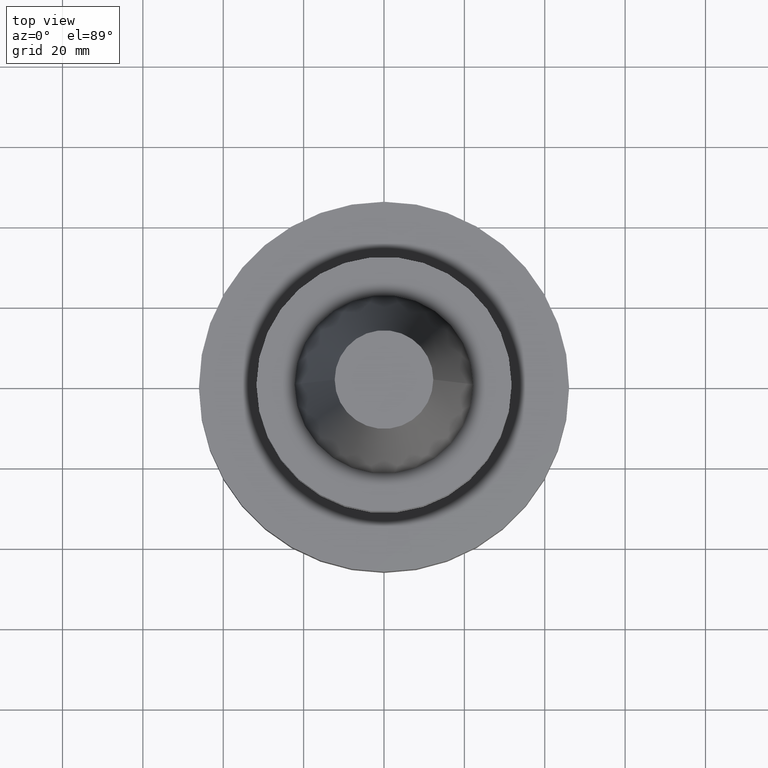
[diagram: clean part render]
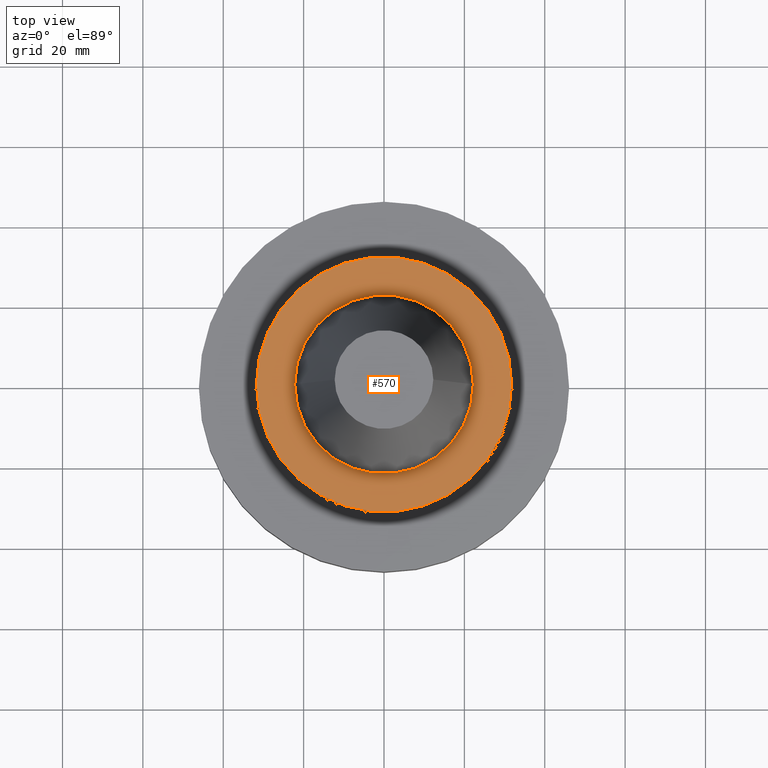
[diagram: same view with one face highlighted and labeled with its STEP entity id]
A machine part, top view. The second image highlights one B-rep face of the part: STEP entity #570.
In plain terms, the highlighted planar face has unit normal (0, 0, -1).
Its self-contained STEP definition (entity closure, byte-faithful):
#34 = CARTESIAN_POINT ( 'NONE',  ( 0.000000000000000000, 31.75000000000000000, -0.9999999999999995559 ) ) ;
#36 = EDGE_CURVE ( 'NONE', #117, #510, #785, .T. ) ;
#47 = CARTESIAN_POINT ( 'NONE',  ( 0.000000000000000000, 0.000000000000000000, -1.000000000000000888 ) ) ;
#54 = EDGE_CURVE ( 'NONE', #985, #870, #834, .T. ) ;
#117 = VERTEX_POINT ( 'NONE', #926 ) ;
#157 = CARTESIAN_POINT ( 'NONE',  ( 0.000000000000000000, 0.000000000000000000, -1.000000000000000888 ) ) ;
#169 = CARTESIAN_POINT ( 'NONE',  ( 0.000000000000000000, 0.000000000000000000, -1.000000000000000888 ) ) ;
#244 = DIRECTION ( 'NONE',  ( 1.000000000000000000, 0.000000000000000000, 0.000000000000000000 ) ) ;
#292 = DIRECTION ( 'NONE',  ( -1.000000000000000000, 0.000000000000000000, -0.000000000000000000 ) ) ;
#345 = DIRECTION ( 'NONE',  ( 1.000000000000000000, 0.000000000000000000, 0.000000000000000000 ) ) ;
#358 = AXIS2_PLACEMENT_3D ( 'NONE', #157, #748, #244 ) ;
#387 = PLANE ( 'NONE',  #687 ) ;
#393 = DIRECTION ( 'NONE',  ( 0.000000000000000000, 0.000000000000000000, -1.000000000000000000 ) ) ;
#402 = CIRCLE ( 'NONE', #540, 22.22500000000000142 ) ;
#403 = CARTESIAN_POINT ( 'NONE',  ( -31.75000000000000000, 3.888253587292846476E-15, -1.000000000000000888 ) ) ;
#492 = ORIENTED_EDGE ( 'NONE', *, *, #661, .T. ) ;
#507 = EDGE_CURVE ( 'NONE', #510, #117, #402, .T. ) ;
#510 = VERTEX_POINT ( 'NONE', #518 ) ;
#518 = CARTESIAN_POINT ( 'NONE',  ( -22.22500000000000142, 2.721777511104992849E-15, -1.000000000000000888 ) ) ;
#539 = DIRECTION ( 'NONE',  ( -0.000000000000000000, -0.000000000000000000, 1.000000000000000000 ) ) ;
#540 = AXIS2_PLACEMENT_3D ( 'NONE', #1021, #619, #345 ) ;
#541 = CIRCLE ( 'NONE', #754, 31.75000000000000000 ) ;
#543 = DIRECTION ( 'NONE',  ( 1.000000000000000000, 0.000000000000000000, 0.000000000000000000 ) ) ;
#570 = ADVANCED_FACE ( 'NONE', ( #721, #799 ), #387, .F. ) ;
#595 = EDGE_LOOP ( 'NONE', ( #791, #950 ) ) ;
#619 = DIRECTION ( 'NONE',  ( -0.000000000000000000, -0.000000000000000000, 1.000000000000000000 ) ) ;
#661 = EDGE_CURVE ( 'NONE', #870, #985, #541, .T. ) ;
#677 = ORIENTED_EDGE ( 'NONE', *, *, #54, .T. ) ;
#687 = AXIS2_PLACEMENT_3D ( 'NONE', #34, #393, #292 ) ;
#703 = AXIS2_PLACEMENT_3D ( 'NONE', #169, #973, #914 ) ;
#721 = FACE_BOUND ( 'NONE', #595, .T. ) ;
#748 = DIRECTION ( 'NONE',  ( -0.000000000000000000, -0.000000000000000000, 1.000000000000000000 ) ) ;
#754 = AXIS2_PLACEMENT_3D ( 'NONE', #47, #539, #543 ) ;
#785 = CIRCLE ( 'NONE', #703, 22.22500000000000142 ) ;
#791 = ORIENTED_EDGE ( 'NONE', *, *, #36, .F. ) ;
#799 = FACE_OUTER_BOUND ( 'NONE', #844, .T. ) ;
#834 = CIRCLE ( 'NONE', #358, 31.75000000000000000 ) ;
#844 = EDGE_LOOP ( 'NONE', ( #677, #492 ) ) ;
#870 = VERTEX_POINT ( 'NONE', #403 ) ;
#914 = DIRECTION ( 'NONE',  ( 1.000000000000000000, 0.000000000000000000, 0.000000000000000000 ) ) ;
#926 = CARTESIAN_POINT ( 'NONE',  ( 22.22500000000000142, 0.000000000000000000, -1.000000000000000888 ) ) ;
#950 = ORIENTED_EDGE ( 'NONE', *, *, #507, .F. ) ;
#973 = DIRECTION ( 'NONE',  ( -0.000000000000000000, -0.000000000000000000, 1.000000000000000000 ) ) ;
#985 = VERTEX_POINT ( 'NONE', #1085 ) ;
#1021 = CARTESIAN_POINT ( 'NONE',  ( 0.000000000000000000, 0.000000000000000000, -1.000000000000000888 ) ) ;
#1085 = CARTESIAN_POINT ( 'NONE',  ( 31.75000000000000000, 0.000000000000000000, -1.000000000000000888 ) ) ;